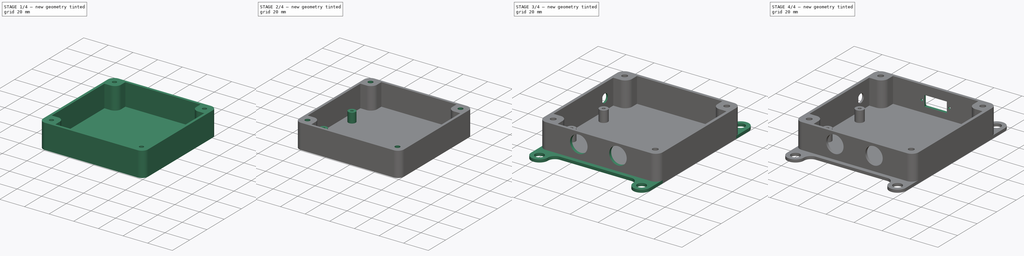
[diagram: build sequence overview — one tinted view per stage of 4, left to right]
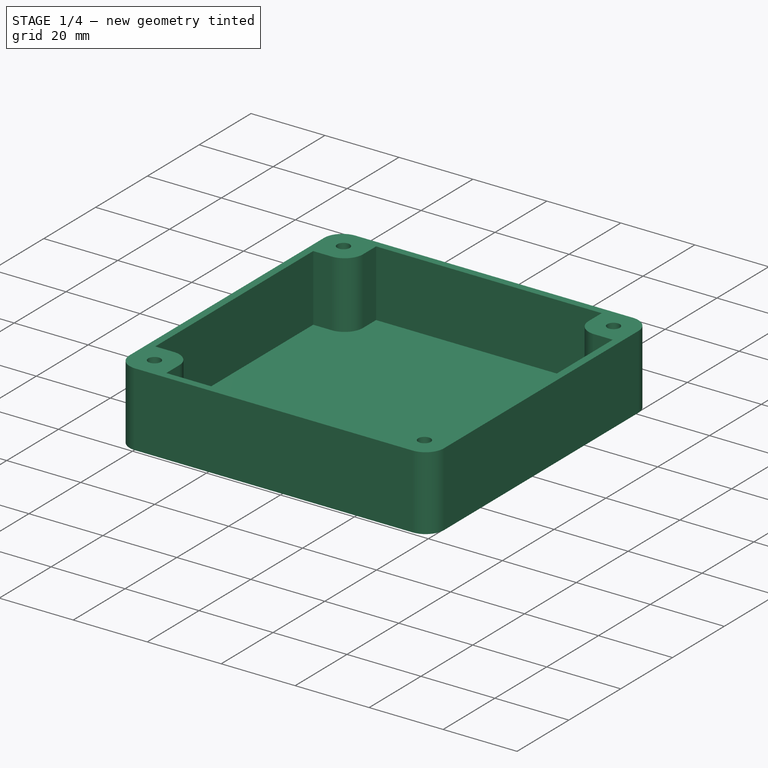
[diagram: stage 1 of 4 — iso view after this stage's code; geometry added in this stage tinted green]
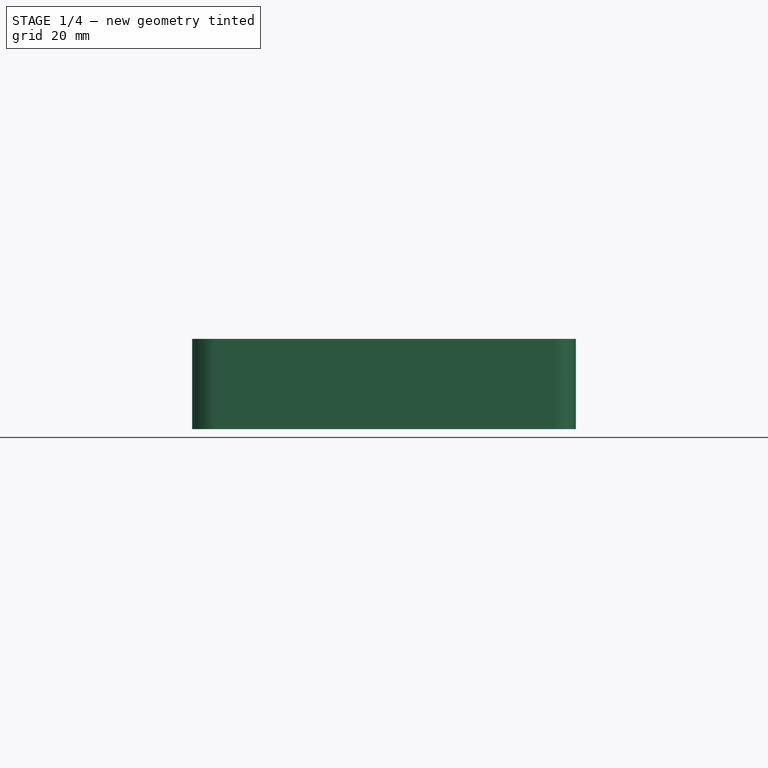
[diagram: stage 1 of 4 — front view after this stage's code; geometry added in this stage tinted green]
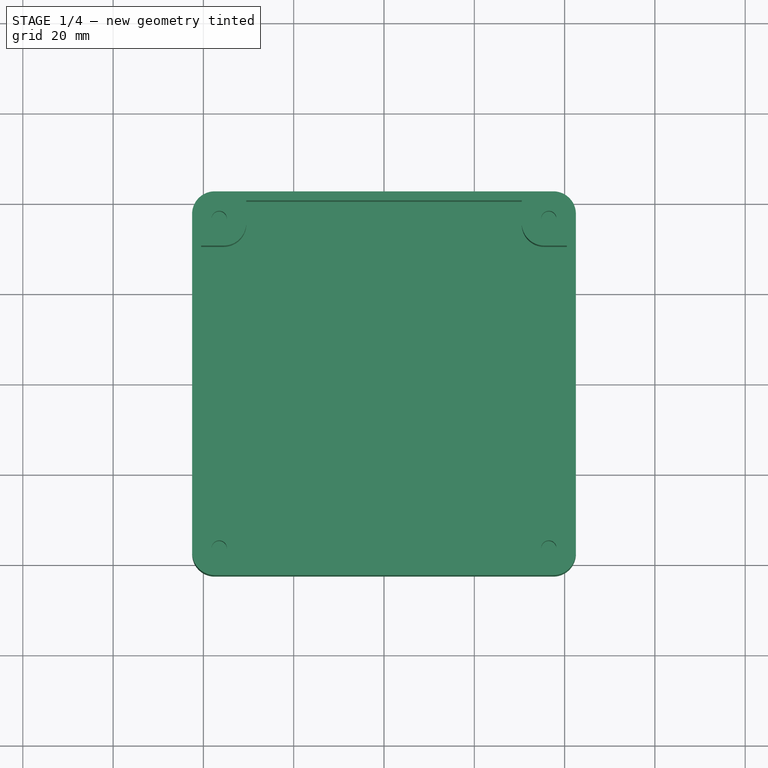
[diagram: stage 1 of 4 — top view after this stage's code; geometry added in this stage tinted green]
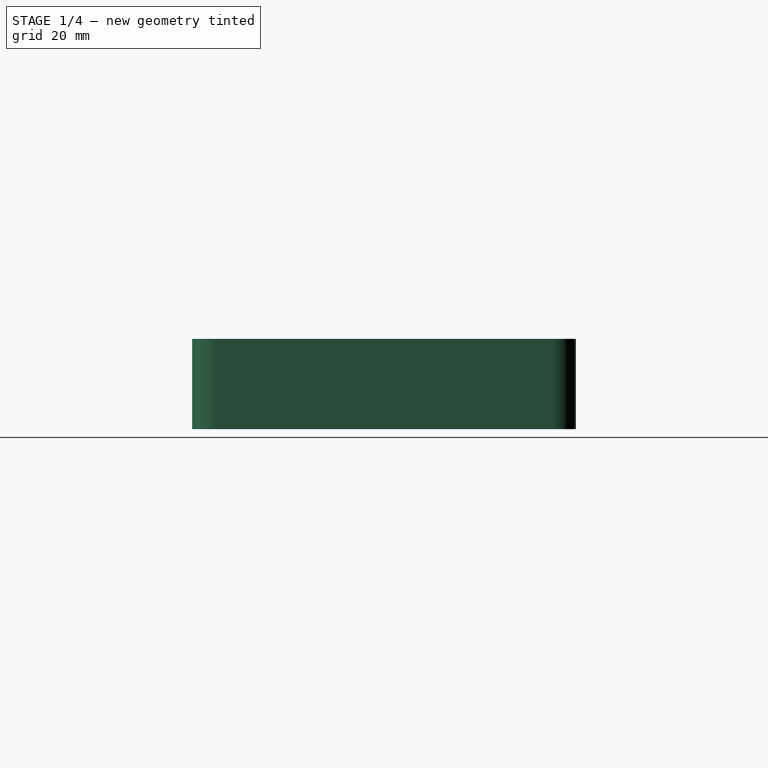
[diagram: stage 1 of 4 — right view after this stage's code; geometry added in this stage tinted green]
FCSTD DOCUMENT  (FreeCAD 0.18.4R)
Label: body
License: All rights reserved
LicenseURL: http://en.wikipedia.org/wiki/All_rights_reserved
objects: Sketcher::SketchObject×15, PartDesign::Pocket×10, PartDesign::Pad×3, PartDesign::Body×1
note: 42 computed .brp shape members not serialized (recipe doc carries the construction recipe); baked Part::Feature solids carry a one-line shape summary decoded from their .brp

FEATURE [Sketcher::SketchObject] Sketch
  MapMode = 5
  Support = -> [XY_Plane]
  sketch-geometry (8):
    g0: LineSegment StartX=-37.5 StartY=42.5 StartZ=0 EndX=37.5 EndY=42.5 EndZ=0
    g1: LineSegment StartX=42.5 StartY=37.5 StartZ=0 EndX=42.5 EndY=-37.5 EndZ=0
    g2: LineSegment StartX=37.5 StartY=-42.5 StartZ=0 EndX=-37.5 EndY=-42.5 EndZ=0
    g3: LineSegment StartX=-42.5 StartY=-37.5 StartZ=0 EndX=-42.5 EndY=37.5 EndZ=0
    g4: ArcOfCircle CenterX=-37.5 CenterY=37.5 CenterZ=0 NormalX=0 NormalY=0 NormalZ=1 AngleXU=0 Radius=5 StartAngle=1.5708 EndAngle=3.14159
    g5: ArcOfCircle CenterX=37.5 CenterY=37.5 CenterZ=0 NormalX=0 NormalY=0 NormalZ=1 AngleXU=0 Radius=5 StartAngle=1e-16 EndAngle=1.5708
    g6: ArcOfCircle CenterX=37.5 CenterY=-37.5 CenterZ=0 NormalX=0 NormalY=0 NormalZ=1 AngleXU=0 Radius=5 StartAngle=4.71239 EndAngle=6.28319
    g7: ArcOfCircle CenterX=-37.5 CenterY=-37.5 CenterZ=0 NormalX=0 NormalY=0 NormalZ=1 AngleXU=0 Radius=5 StartAngle=3.14159 EndAngle=4.71239
  constraints (19):
    c: Horizontal(g0)
    c: Horizontal(g2)
    c: Vertical(g1)
    c: Vertical(g3)
    c: Tangent(g3,g4) = 1.5708
    c: Tangent(g0,g4) = 1.5708
    c: Tangent(g0,g5) = 1.5708
    c: Tangent(g1,g5) = 1.5708
    c: Tangent(g1,g6) = 1.5708
    c: Tangent(g2,g6) = 1.5708
    c: Tangent(g2,g7) = 1.5708
    c: Tangent(g3,g7) = 1.5708
    c: Equal(g4,g5)
    c: Equal(g5,g6)
    c: Equal(g6,g7)
    c: Symmetric(g5,g7,g-1)
    c: DistanceY(g2,g0) = 85
    c: Equal(g0,g1)
    c: Radius(g4) = 5
FEATURE [PartDesign::Pad] Pad
  Length = 20
  Length2 = 100
  Profile = -> Sketch
  Type = 0
FEATURE [Sketcher::SketchObject] Sketch001
  MapMode = 5
  Placement = pos=(0,0,20) rot=(0,0,1;0rad)
  Support = -> [Pad]
FEATURE [Sketcher::SketchObject] Sketch002
  ExternalGeometry = -> [Pad]
  MapMode = 5
  Placement = pos=(0,0,20) rot=(0,0,1;0rad)
  Support = -> [Pad]
  sketch-geometry (16):
    g0: LineSegment StartX=-40.5 StartY=30.5 StartZ=0 EndX=-40.5 EndY=-30.5 EndZ=0
    g1: LineSegment StartX=-40.5 StartY=-30.5 StartZ=0 EndX=-35.5 EndY=-30.5 EndZ=0
    g2: LineSegment StartX=-30.5 StartY=-35.5 StartZ=0 EndX=-30.5 EndY=-40.5 EndZ=0
    g3: LineSegment StartX=-30.5 StartY=-40.5 StartZ=0 EndX=30.5 EndY=-40.5 EndZ=0
    g4: LineSegment StartX=30.5 StartY=-40.5 StartZ=0 EndX=30.5 EndY=-35.5 EndZ=0
    g5: LineSegment StartX=35.5 StartY=-30.5 StartZ=0 EndX=40.5 EndY=-30.5 EndZ=0
    g6: LineSegment StartX=40.5 StartY=-30.5 StartZ=0 EndX=40.5 EndY=30.5 EndZ=0
    g7: LineSegment StartX=40.5 StartY=30.5 StartZ=0 EndX=35.5 EndY=30.5 EndZ=0
    g8: LineSegment StartX=30.5 StartY=35.5 StartZ=0 EndX=30.5 EndY=40.5 EndZ=0
    g9: LineSegment StartX=30.5 StartY=40.5 StartZ=0 EndX=-30.5 EndY=40.5 EndZ=0
    g10: LineSegment StartX=-30.5 StartY=40.5 StartZ=0 EndX=-30.5 EndY=35.5 EndZ=0
    g11: LineSegment StartX=-35.5 StartY=30.5 StartZ=0 EndX=-40.5 EndY=30.5 EndZ=0
    g12: ArcOfCircle CenterX=-35.5 CenterY=35.5 CenterZ=0 NormalX=0 NormalY=0 NormalZ=1 AngleXU=0 Radius=5 StartAngle=4.71239 EndAngle=6.28319
    g13: ArcOfCircle CenterX=35.5 CenterY=35.5 CenterZ=0 NormalX=0 NormalY=0 NormalZ=1 AngleXU=0 Radius=5 StartAngle=3.14159 EndAngle=4.71239
    g14: ArcOfCircle CenterX=35.5 CenterY=-35.5 CenterZ=0 NormalX=0 NormalY=0 NormalZ=1 AngleXU=0 Radius=5 StartAngle=1.5708 EndAngle=3.14159
    g15: ArcOfCircle CenterX=-35.5 CenterY=-35.5 CenterZ=0 NormalX=0 NormalY=0 NormalZ=1 AngleXU=0 Radius=5 StartAngle=0 EndAngle=1.5708
  constraints (43):
    c: Vertical(g0)
    c: Coincident(g0,g1)
    c: Coincident(g2,g3)
    c: Horizontal(g3)
    c: Coincident(g3,g4)
    c: Coincident(g5,g6)
    c: Vertical(g6)
    c: Coincident(g6,g7)
    c: Horizontal(g7)
    c: Vertical(g8)
    c: Coincident(g8,g9)
    c: Horizontal(g9)
    c: Coincident(g9,g10)
    c: Coincident(g11,g0)
    c: Horizontal(g11)
    c: Tangent(g11,g12) = 1.5708
    c: Tangent(g10,g12) = 1.5708
    c: Tangent(g8,g13) = 1.5708
    c: Tangent(g7,g13) = 1.5708
    c: Tangent(g5,g14) = 1.5708
    c: Tangent(g4,g14) = 1.5708
    c: Tangent(g2,g15) = 1.5708
    c: Tangent(g1,g15) = 1.5708
    c: Vertical(g10)
    c: Horizontal(g5)
    c: Vertical(g4)
    c: Horizontal(g1)
    c: Vertical(g2)
    c: Equal(g0,g6)
    c: Equal(g6,g9)
    c: Equal(g9,g3)
    c: Equal(g14,g15)
    c: Equal(g2,g1)
    c: Equal(g1,g5)
    c: Equal(g5,g4)
    c: Equal(g4,g7)
    c: Equal(g7,g8)
    c: Equal(g8,g10)
    c: Equal(g10,g11)
    c: Symmetric(g13,g15,g-1)
    c: DistanceY(g9,g-3) = 2
    c: Radius(g12) = 5
    c: DistanceX(g11,g11) = 5
FEATURE [PartDesign::Pocket] Pocket
  BaseFeature = -> Pad
  Length = 18
  Length2 = 100
  Profile = -> Sketch002
  Type = 0
FEATURE [Sketcher::SketchObject] Sketch003
  ExternalGeometry = -> [Pocket]
  MapMode = 5
  Placement = pos=(0,0,20) rot=(0,0,1;0rad)
  Support = -> [Pocket]
  sketch-geometry (4):
    g0: Circle CenterX=-36.5 CenterY=36.5 CenterZ=0 NormalX=0 NormalY=0 NormalZ=1 AngleXU=0 Radius=1.6891
    g1: Circle CenterX=36.5 CenterY=36.5 CenterZ=0 NormalX=0 NormalY=0 NormalZ=1 AngleXU=0 Radius=1.6891
    g2: Circle CenterX=36.5 CenterY=-36.5 CenterZ=0 NormalX=0 NormalY=0 NormalZ=1 AngleXU=0 Radius=1.6891
    g3: Circle CenterX=-36.5 CenterY=-36.5 CenterZ=0 NormalX=0 NormalY=0 NormalZ=1 AngleXU=0 Radius=1.6891
  constraints (10):
    c: Vertical(g1,g2)
    c: Vertical(g3,g0)
    c: Horizontal(g0,g1)
    c: Horizontal(g2,g3)
    c: Equal(g3,g0)
    c: Equal(g0,g1)
    c: Equal(g1,g2)
    c: Symmetric(g1,g3,g-1)
    c: Symmetric(g-4,g-3,g3)
    c: Radius(g3) = 1.6891
FEATURE [PartDesign::Pocket] Pocket001
  BaseFeature = -> Pocket
  Length = 10
  Length2 = 100
  Profile = -> Sketch003
  Type = 0
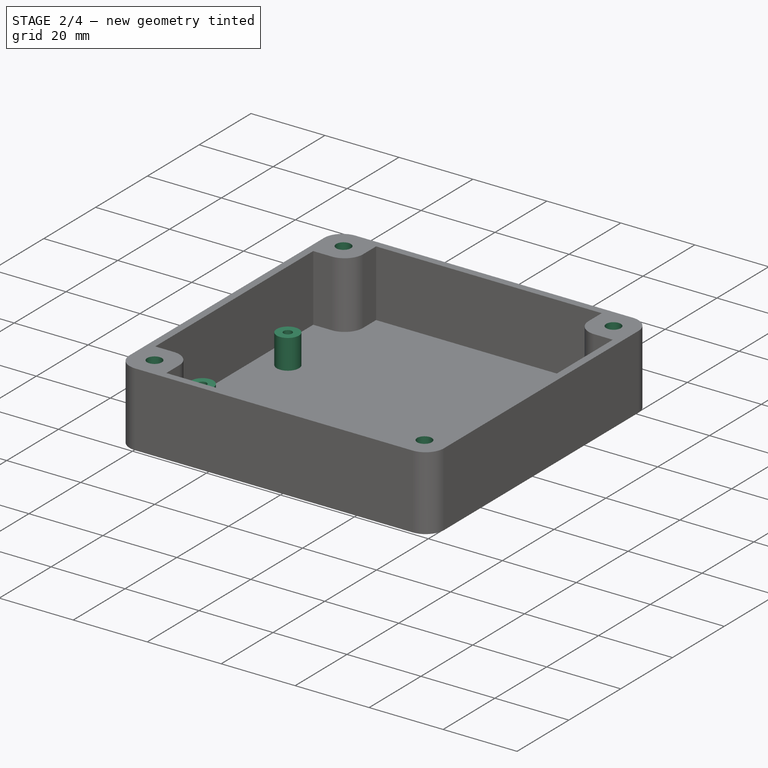
[diagram: stage 2 of 4 — iso view after this stage's code; geometry added in this stage tinted green]
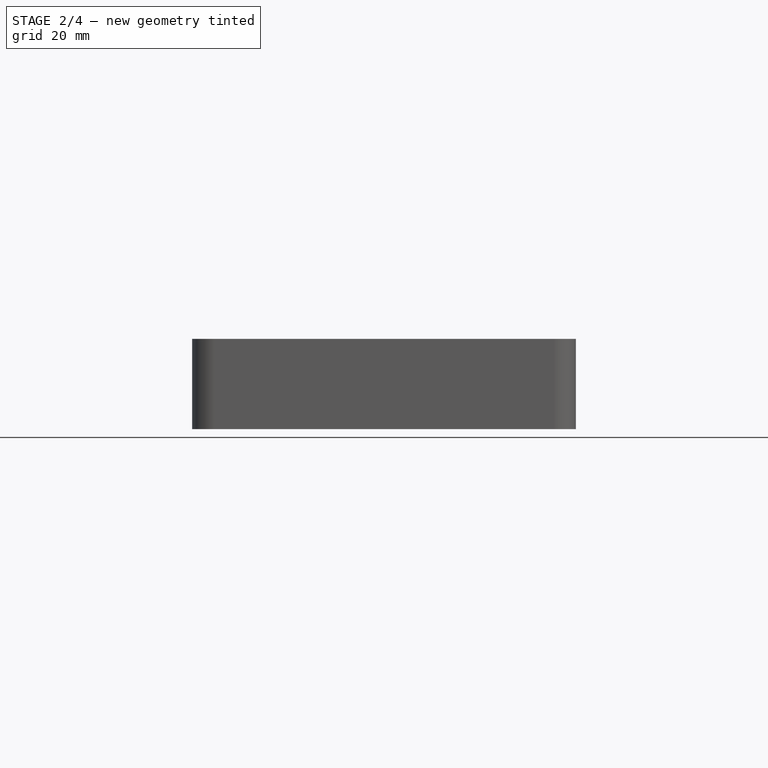
[diagram: stage 2 of 4 — front view after this stage's code; geometry added in this stage tinted green]
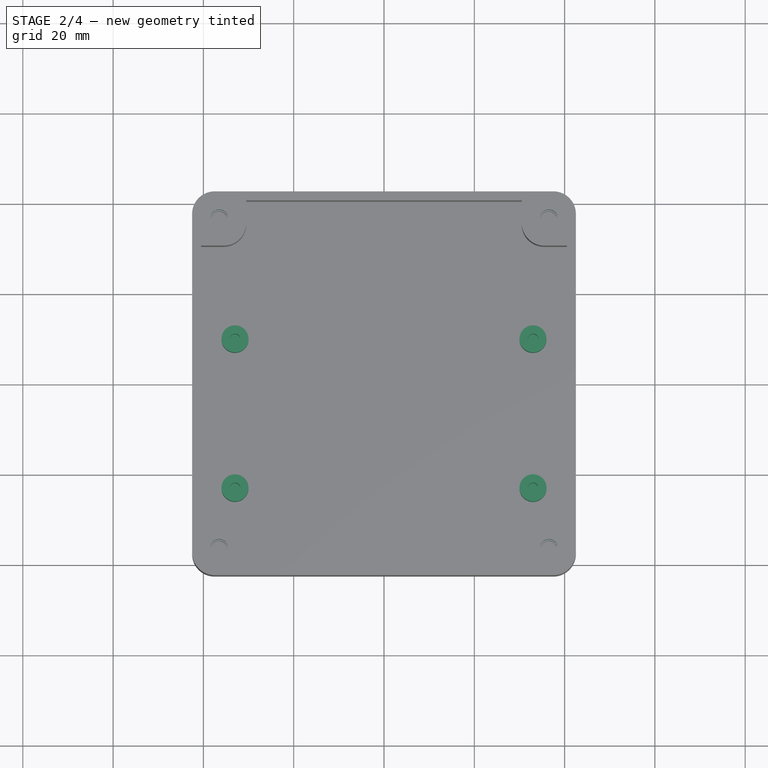
[diagram: stage 2 of 4 — top view after this stage's code; geometry added in this stage tinted green]
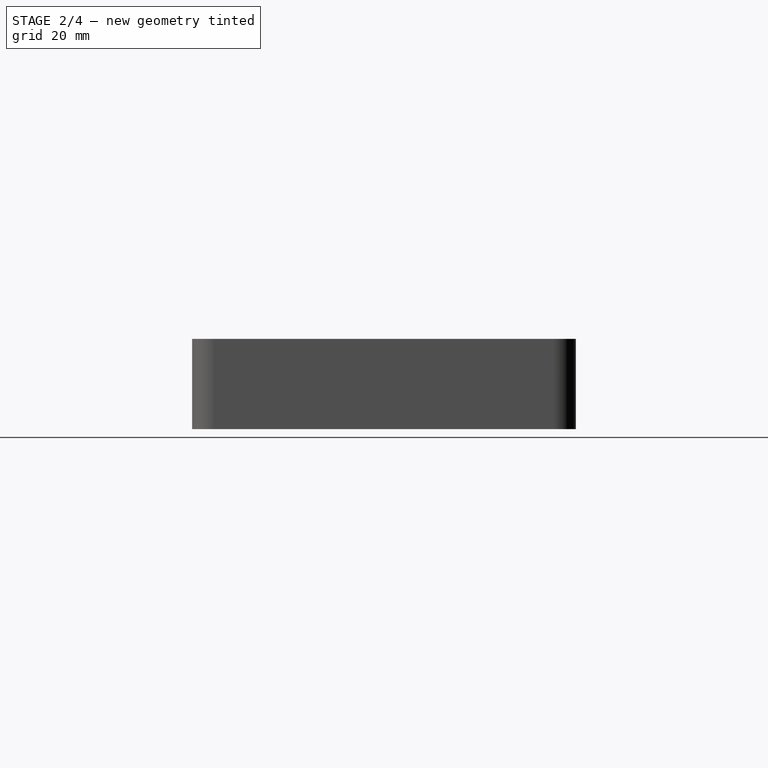
[diagram: stage 2 of 4 — right view after this stage's code; geometry added in this stage tinted green]
FEATURE [Sketcher::SketchObject] Sketch004
  MapMode = 5
  Placement = pos=(0,0,2) rot=(0,0,1;0rad)
  Support = -> [Pocket001]
FEATURE [Sketcher::SketchObject] Sketch005
  ExternalGeometry = -> [Pocket001]
  MapMode = 5
  Placement = pos=(0,0,20) rot=(0,0,1;0rad)
  Support = -> [Pocket001]
  sketch-geometry (4):
    g0: Circle CenterX=-36.5 CenterY=36.5 CenterZ=0 NormalX=0 NormalY=0 NormalZ=1 AngleXU=0 Radius=1.98
    g1: Circle CenterX=-36.5 CenterY=-36.5 CenterZ=0 NormalX=0 NormalY=0 NormalZ=1 AngleXU=0 Radius=1.98
    g2: Circle CenterX=36.5 CenterY=-36.5 CenterZ=0 NormalX=0 NormalY=0 NormalZ=1 AngleXU=0 Radius=1.98
    g3: Circle CenterX=36.5 CenterY=36.5 CenterZ=0 NormalX=0 NormalY=0 NormalZ=1 AngleXU=0 Radius=1.98
  constraints (8):
    c: Coincident(g0,g-3)
    c: Coincident(g1,g-4)
    c: Coincident(g2,g-5)
    c: Coincident(g3,g-6)
    c: Equal(g3,g0)
    c: Equal(g0,g1)
    c: Equal(g1,g2)
    c: Radius(g2) = 1.98
FEATURE [PartDesign::Pocket] Pocket002
  BaseFeature = -> Pocket001
  Length = 5
  Length2 = 100
  Profile = -> Sketch005
  Type = 0
FEATURE [Sketcher::SketchObject] Sketch006
  MapMode = 5
  Placement = pos=(0,0,2) rot=(0,0,1;0rad)
  Support = -> [Pocket002]
  sketch-geometry (4):
    g0: Circle CenterX=-33 CenterY=10 CenterZ=0 NormalX=0 NormalY=0 NormalZ=1 AngleXU=0 Radius=3
    g1: Circle CenterX=33 CenterY=10 CenterZ=0 NormalX=0 NormalY=0 NormalZ=1 AngleXU=0 Radius=3
    g2: Circle CenterX=-33 CenterY=-23 CenterZ=0 NormalX=0 NormalY=0 NormalZ=1 AngleXU=0 Radius=3
    g3: Circle CenterX=33 CenterY=-23 CenterZ=0 NormalX=0 NormalY=0 NormalZ=1 AngleXU=0 Radius=3
  constraints (11):
    c: Horizontal(g3,g2)
    c: Vertical(g0,g2)
    c: Vertical(g1,g3)
    c: Equal(g3,g2)
    c: Equal(g2,g1)
    c: Equal(g1,g0)
    c: Radius(g2) = 3
    c: DistanceX(g0,g1) = 66
    c: DistanceY(g2,g0) = 33
    c: Symmetric(g1,g0,g-2)
    c: DistanceY(g-1,g1) = 10
FEATURE [PartDesign::Pad] Pad001
  BaseFeature = -> Pocket002
  Length = 8
  Length2 = 100
  Profile = -> Sketch006
  Type = 0
FEATURE [Sketcher::SketchObject] Sketch007
  ExternalGeometry = -> [Pad001]
  MapMode = 5
  Placement = pos=(0,0,10) rot=(0,0,1;0rad)
  Support = -> [Pad001]
  sketch-geometry (4):
    g0: Circle CenterX=33 CenterY=10 CenterZ=0 NormalX=0 NormalY=0 NormalZ=1 AngleXU=0 Radius=1.15
    g1: Circle CenterX=33 CenterY=-23 CenterZ=0 NormalX=0 NormalY=0 NormalZ=1 AngleXU=0 Radius=1.15
    g2: Circle CenterX=-33 CenterY=10 CenterZ=0 NormalX=0 NormalY=0 NormalZ=1 AngleXU=0 Radius=1.15
    g3: Circle CenterX=-33 CenterY=-23 CenterZ=0 NormalX=0 NormalY=0 NormalZ=1 AngleXU=0 Radius=1.15
  constraints (8):
    c: Coincident(g0,g-3)
    c: Coincident(g1,g-6)
    c: Coincident(g2,g-4)
    c: Coincident(g3,g-5)
    c: Equal(g3,g2)
    c: Equal(g2,g0)
    c: Equal(g0,g1)
    c: Radius(g1) = 1.15
FEATURE [PartDesign::Pocket] Pocket003
  BaseFeature = -> Pad001
  Length = 7
  Length2 = 100
  Profile = -> Sketch007
  Type = 0
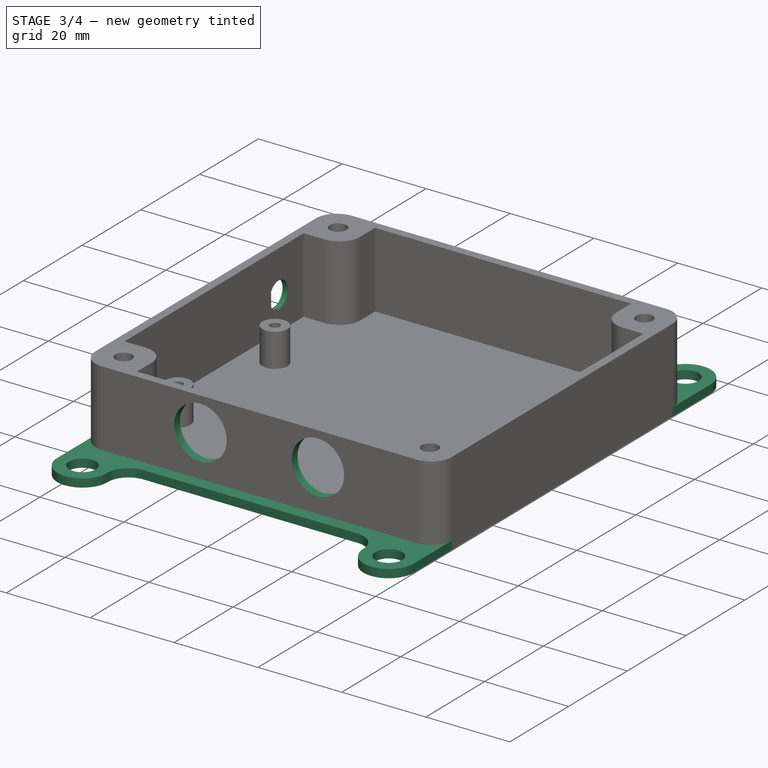
[diagram: stage 3 of 4 — iso view after this stage's code; geometry added in this stage tinted green]
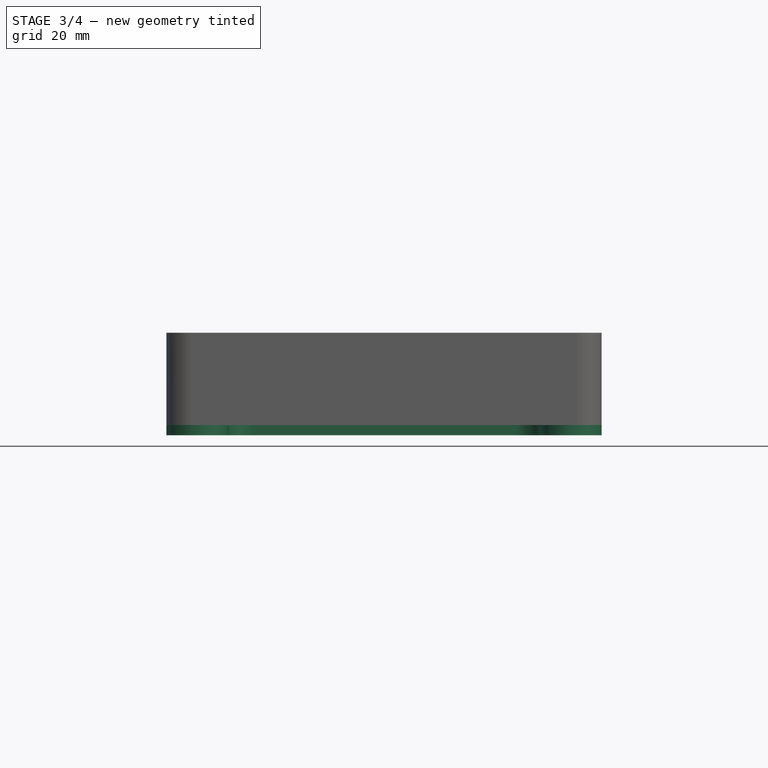
[diagram: stage 3 of 4 — front view after this stage's code; geometry added in this stage tinted green]
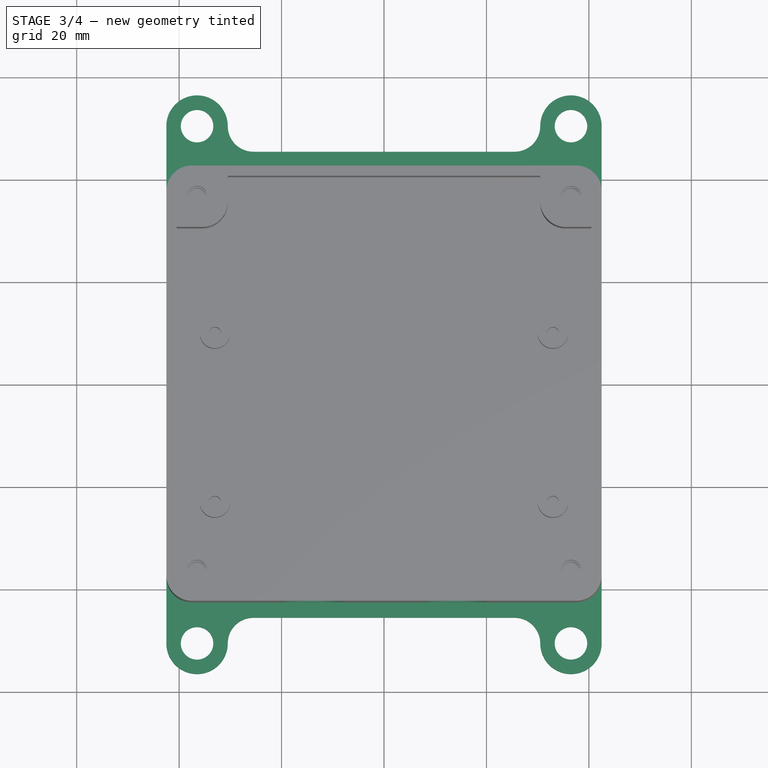
[diagram: stage 3 of 4 — top view after this stage's code; geometry added in this stage tinted green]
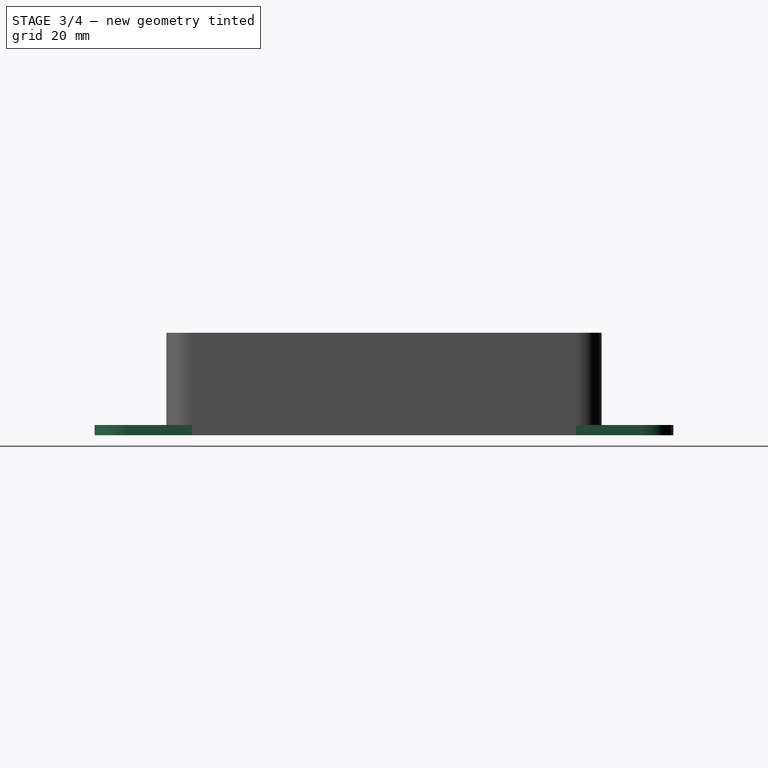
[diagram: stage 3 of 4 — right view after this stage's code; geometry added in this stage tinted green]
FEATURE [Sketcher::SketchObject] Sketch008
  ExternalGeometry = -> [Pocket003]
  MapMode = 5
  Placement = pos=(0,-42.5,0) rot=(1,0,0;1.5708rad)
  Support = -> [Pocket003]
  sketch-geometry (2):
    g0: Circle CenterX=-14 CenterY=12 CenterZ=0 NormalX=0 NormalY=0 NormalZ=1 AngleXU=0 Radius=6.25
    g1: Circle CenterX=14 CenterY=12 CenterZ=0 NormalX=0 NormalY=0 NormalZ=1 AngleXU=0 Radius=6.25
  constraints (5):
    c: Equal(g0,g1)
    c: Symmetric(g1,g0,g-2)
    c: DistanceY(g-1,g0) = 12
    c: Radius(g0) = 6.25
    c: DistanceX(g-1,g1) = 14
FEATURE [PartDesign::Pocket] Pocket004
  BaseFeature = -> Pocket003
  Length = 5
  Length2 = 100
  Profile = -> Sketch008
  Type = 0
FEATURE [Sketcher::SketchObject] Sketch012
  MapMode = 5
  Placement = pos=(-42.5,0,0) rot=(0.57735,-0.57735,-0.57735;2.0944rad)
  sketch-geometry (2):
    g0: ArcOfCircle CenterX=-22 CenterY=10 CenterZ=0 NormalX=0 NormalY=0 NormalZ=1 AngleXU=0 Radius=3.0734 StartAngle=0.583189 EndAngle=5.7
    g1: LineSegment StartX=-19.4346 StartY=11.6925 StartZ=0 EndX=-19.4346 EndY=8.30751 EndZ=0
  constraints (7):
    c: DistanceY(g-1,g0) = 10
    c: Vertical(g1)
    c: Coincident(g0,g1)
    c: Coincident(g0,g1)
    c: DistanceX(g0,g0) = 2.5654
    c: Radius(g0) = 3.0734
    c: DistanceX(g0,g-1) = 22
FEATURE [PartDesign::Pocket] Pocket008
  BaseFeature = -> Pocket004
  Length = 5
  Length2 = 100
  Profile = -> Sketch012
  Type = 0
FEATURE [Sketcher::SketchObject] Sketch013
  ExternalGeometry = -> [Pocket008]
  MapMode = 5
  Placement = pos=(-42.5,0,0) rot=(0.57735,-0.57735,-0.57735;2.0944rad)
  Support = -> [Pocket008]
  sketch-geometry (1):
    g0: Circle CenterX=-22 CenterY=10 CenterZ=0 NormalX=0 NormalY=0 NormalZ=1 AngleXU=0 Radius=4.40055
  constraints (2):
    c: Coincident(g0,g-3)
    c: Radius(g0) = 4.40055
FEATURE [PartDesign::Pocket] Pocket009
  BaseFeature = -> Pocket008
  Length = 0.75
  Length2 = 100
  Profile = -> Sketch013
  Type = 0
FEATURE [Sketcher::SketchObject] Sketch014
  ExternalGeometry = -> [Pocket009]
  MapMode = 5
  Placement = pos=(0,0,0) rot=(1,0,0;3.14159rad)
  Support = -> [Pocket009]
  sketch-geometry (16):
    g0: ArcOfCircle CenterX=-36.5 CenterY=50.5 CenterZ=0 NormalX=0 NormalY=0 NormalZ=1 AngleXU=0 Radius=6 StartAngle=0 EndAngle=3.14159
    g1: ArcOfCircle CenterX=36.5 CenterY=50.5 CenterZ=0 NormalX=0 NormalY=0 NormalZ=1 AngleXU=0 Radius=6 StartAngle=2.48892e-08 EndAngle=3.14159
    g2: ArcOfCircle CenterX=-36.5 CenterY=-50.5 CenterZ=0 NormalX=0 NormalY=0 NormalZ=1 AngleXU=0 Radius=6 StartAngle=3.14159 EndAngle=6.28319
    g3: ArcOfCircle CenterX=36.5 CenterY=-50.5 CenterZ=0 NormalX=0 NormalY=0 NormalZ=1 AngleXU=0 Radius=6 StartAngle=3.14159 EndAngle=6.28319
    g4: LineSegment StartX=-25.5 StartY=45.5 StartZ=0 EndX=25.5 EndY=45.5 EndZ=0
    g5: LineSegment StartX=-42.5 StartY=50.5 StartZ=0 EndX=-42.5 EndY=-50.5 EndZ=0
    g6: LineSegment StartX=-25.5 StartY=-45.5 StartZ=0 EndX=25.5 EndY=-45.5 EndZ=0
    g7: LineSegment StartX=42.5 StartY=-50.5 StartZ=0 EndX=42.5 EndY=50.5 EndZ=0
    g8: ArcOfCircle CenterX=-25.5 CenterY=50.5 CenterZ=0 NormalX=0 NormalY=0 NormalZ=1 AngleXU=0 Radius=5 StartAngle=3.14159 EndAngle=4.71239
    g9: ArcOfCircle CenterX=25.5 CenterY=50.5 CenterZ=0 NormalX=0 NormalY=0 NormalZ=1 AngleXU=0 Radius=5 StartAngle=4.71239 EndAngle=6.28319
    g10: ArcOfCircle CenterX=-25.5 CenterY=-50.5 CenterZ=0 NormalX=0 NormalY=0 NormalZ=1 AngleXU=0 Radius=5 StartAngle=1.5708 EndAngle=3.14159
    g11: ArcOfCircle CenterX=25.5 CenterY=-50.5 CenterZ=0 NormalX=0 NormalY=0 NormalZ=1 AngleXU=0 Radius=5 StartAngle=4e-16 EndAngle=1.5708
    g12: Circle CenterX=-36.5 CenterY=-50.5 CenterZ=0 NormalX=0 NormalY=0 NormalZ=1 AngleXU=0 Radius=3.175
    g13: Circle CenterX=36.5 CenterY=-50.5 CenterZ=0 NormalX=0 NormalY=0 NormalZ=1 AngleXU=0 Radius=3.175
    g14: Circle CenterX=36.5 CenterY=50.5 CenterZ=0 NormalX=0 NormalY=0 NormalZ=1 AngleXU=0 Radius=3.175
    g15: Circle CenterX=-36.5 CenterY=50.5 CenterZ=0 NormalX=0 NormalY=0 NormalZ=1 AngleXU=0 Radius=3.175
  constraints (43):
    c: Horizontal(g4)
    c: Coincident(g5,g0)
    c: Coincident(g5,g2)
    c: Horizontal(g6)
    c: Coincident(g7,g3)
    c: Coincident(g7,g1)
    c: Tangent(g7,g1)
    c: Equal(g1,g3)
    c: Equal(g3,g2)
    c: Equal(g2,g0)
    c: Vertical(g7)
    c: Horizontal(g0,g0)
    c: Horizontal(g1,g1)
    c: Horizontal(g0,g0)
    c: Vertical(g5)
    c: Vertical(g0,g-3)
    c: Vertical(g1,g-4)
    c: Horizontal(g3,g3)
    c: Horizontal(g2,g2)
    c: Horizontal(g2,g2)
    c: Horizontal(g3,g3)
    c: Tangent(g0,g8) = 1.5708
    c: Tangent(g4,g8) = -1.5708
    c: Tangent(g4,g9) = -1.5708
    c: Tangent(g1,g9) = 1.5708
    c: Tangent(g2,g10) = 1.5708
    c: Tangent(g6,g10) = 1.5708
    c: Tangent(g6,g11) = 1.5708
    c: Tangent(g3,g11) = 1.5708
    c: Equal(g8,g10)
    c: Equal(g10,g11)
    c: Radius(g2) = 6
    c: Symmetric(g6,g4,g-1)
    c: DistanceY(g6,g-5) = 3
    c: Coincident(g12,g2)
    c: Coincident(g13,g3)
    c: Coincident(g14,g1)
    c: Coincident(g15,g0)
    c: Equal(g15,g14)
    c: Equal(g14,g13)
    c: Equal(g13,g12)
    c: Radius(g13) = 3.175
    c: Radius(g8) = 5
FEATURE [PartDesign::Pad] Pad002
  BaseFeature = -> Pocket009
  Length = 2
  Length2 = 100
  Profile = -> Sketch014
  Reversed = true
  Type = 0
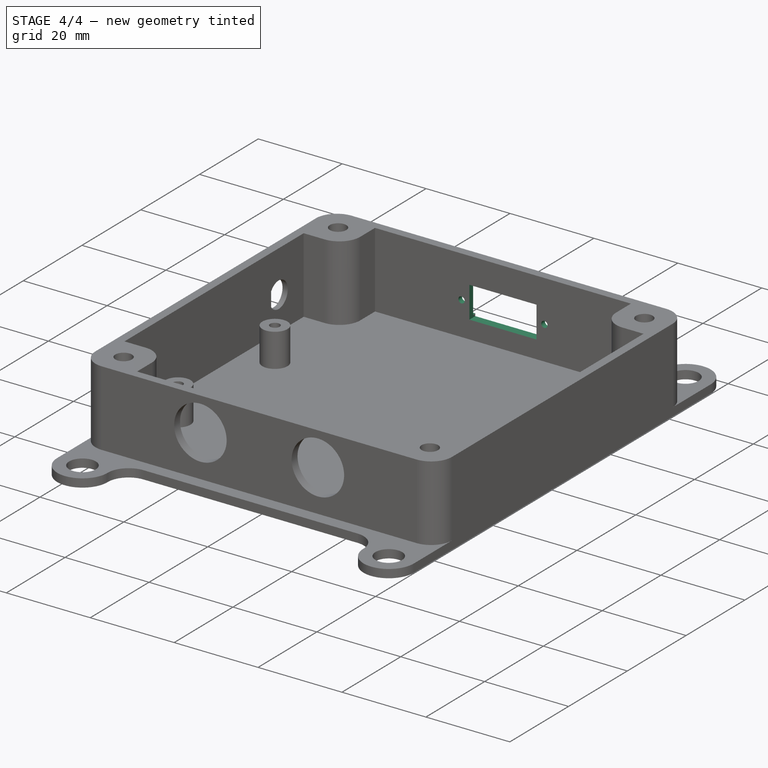
[diagram: stage 4 of 4 — iso view after this stage's code; geometry added in this stage tinted green]
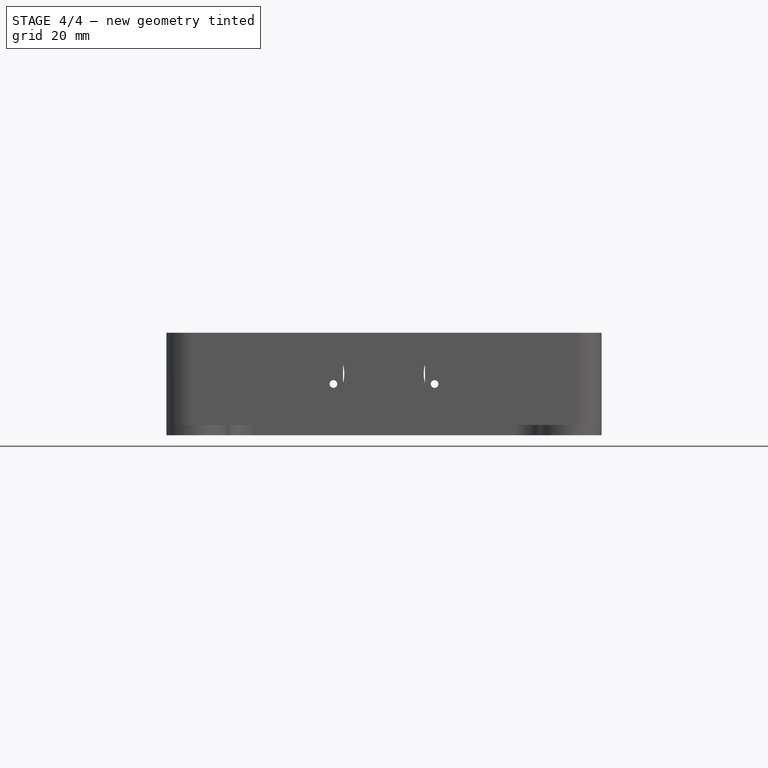
[diagram: stage 4 of 4 — front view after this stage's code; geometry added in this stage tinted green]
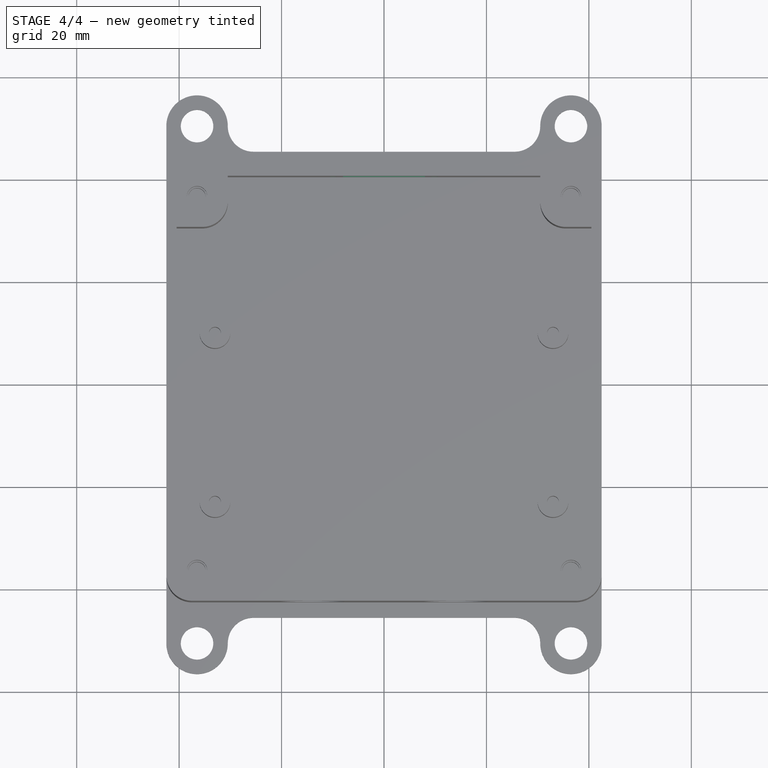
[diagram: stage 4 of 4 — top view after this stage's code; geometry added in this stage tinted green]
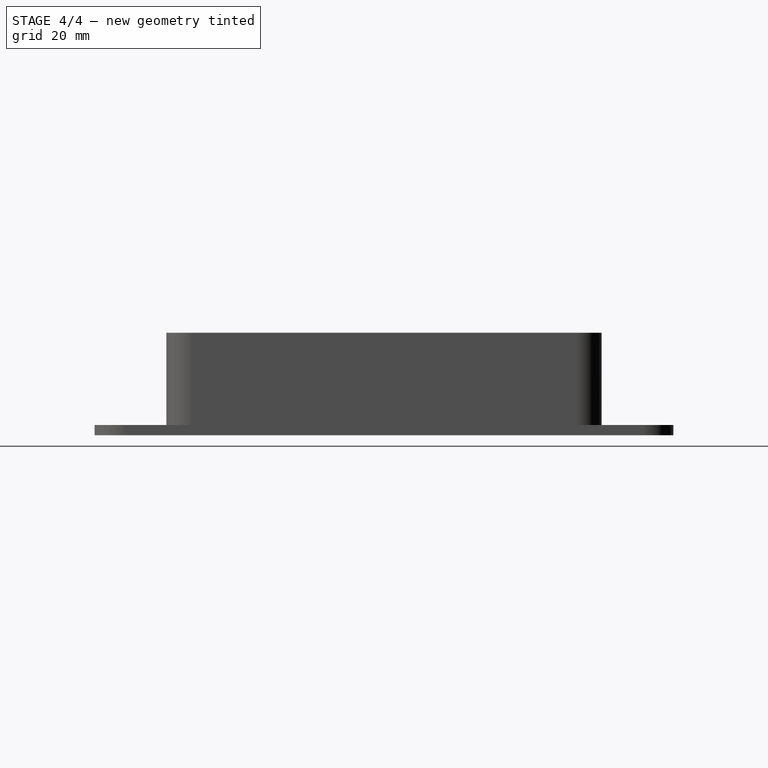
[diagram: stage 4 of 4 — right view after this stage's code; geometry added in this stage tinted green]
FEATURE [Sketcher::SketchObject] Sketch015
  MapMode = 5
  Placement = pos=(0,42.5,0) rot=(0,0.707107,0.707107;3.14159rad)
  sketch-geometry (4):
    g0: LineSegment StartX=-11.75 StartY=13.15 StartZ=0 EndX=11.75 EndY=13.15 EndZ=0
    g1: LineSegment StartX=11.75 StartY=13.15 StartZ=0 EndX=11.75 EndY=6.85 EndZ=0
    g2: LineSegment StartX=11.75 StartY=6.85 StartZ=0 EndX=-11.75 EndY=6.85 EndZ=0
    g3: LineSegment StartX=-11.75 StartY=6.85 StartZ=0 EndX=-11.75 EndY=13.15 EndZ=0
  constraints (12):
    c: Coincident(g0,g1)
    c: Coincident(g1,g2)
    c: Coincident(g2,g3)
    c: Coincident(g3,g0)
    c: Horizontal(g0)
    c: Horizontal(g2)
    c: Vertical(g1)
    c: Vertical(g3)
    c: DistanceX(g2,g2) = 23.5
    c: DistanceY(g1,g1) = 6.3
    c: DistanceX(g2,g-1) = 11.75
    c: DistanceY(g-1,g1) = 6.85
FEATURE [PartDesign::Pocket] Pocket010
  BaseFeature = -> Pad002
  Length = 0.75
  Length2 = 100
  Profile = -> Sketch015
  Type = 0
FEATURE [Sketcher::SketchObject] Sketch016
  ExternalGeometry = -> [Pocket010]
  MapMode = 5
  Placement = pos=(0,42.5,0) rot=(0,0.707107,0.707107;3.14159rad)
  Support = -> [Pocket010]
  sketch-geometry (4):
    g0: LineSegment StartX=-8 StartY=13.75 StartZ=0 EndX=8 EndY=13.75 EndZ=0
    g1: LineSegment StartX=8 StartY=13.75 StartZ=0 EndX=8 EndY=6.25 EndZ=0
    g2: LineSegment StartX=8 StartY=6.25 StartZ=0 EndX=-8 EndY=6.25 EndZ=0
    g3: LineSegment StartX=-8 StartY=6.25 StartZ=0 EndX=-8 EndY=13.75 EndZ=0
  constraints (12):
    c: Coincident(g0,g1)
    c: Coincident(g1,g2)
    c: Coincident(g2,g3)
    c: Coincident(g3,g0)
    c: Horizontal(g0)
    c: Horizontal(g2)
    c: Vertical(g1)
    c: Vertical(g3)
    c: DistanceX(g2,g2) = 16
    c: DistanceY(g1,g1) = 7.5
    c: DistanceY(g-3,g2) = -0.6
    c: DistanceX(g-3,g0) = 3.75
FEATURE [PartDesign::Pocket] Pocket011
  BaseFeature = -> Pocket010
  Length = 5
  Length2 = 100
  Profile = -> Sketch016
  Type = 0
FEATURE [Sketcher::SketchObject] Sketch017
  ExternalGeometry = -> [Pocket011]
  MapMode = 5
  Placement = pos=(0,41.75,0) rot=(0,0.707107,0.707107;3.14159rad)
  Support = -> [Pocket011]
  sketch-geometry (2):
    g0: Circle CenterX=-9.875 CenterY=10 CenterZ=0 NormalX=0 NormalY=0 NormalZ=1 AngleXU=0 Radius=0.75
    g1: Circle CenterX=9.875 CenterY=10 CenterZ=0 NormalX=0 NormalY=0 NormalZ=1 AngleXU=0 Radius=0.75
  constraints (4):
    c: Equal(g0,g1)
    c: Radius(g1) = 0.75
    c: Symmetric(g-4,g-3,g0)
    c: Symmetric(g-6,g-5,g1)
FEATURE [PartDesign::Pocket] Pocket012
  BaseFeature = -> Pocket011
  Length = 5
  Length2 = 100
  Profile = -> Sketch017
  Type = 0
FEATURE [PartDesign::Body] Body
  Group = -> [Sketch,Pad,Sketch001,Sketch002,Pocket,Sketch003,Pocket001,Sketch004,Sketch005,Pocket002,Sketch006,Pad001,Sketch007,Pocket003,Sketch008,Pocket004,Sketch012,Pocket008,Sketch013,Pocket009,Sketch014,Pad002,Sketch015,Pocket010,Sketch016,Pocket011,Sketch017,Pocket012]
  Origin = -> Origin
  Tip = -> Pocket012
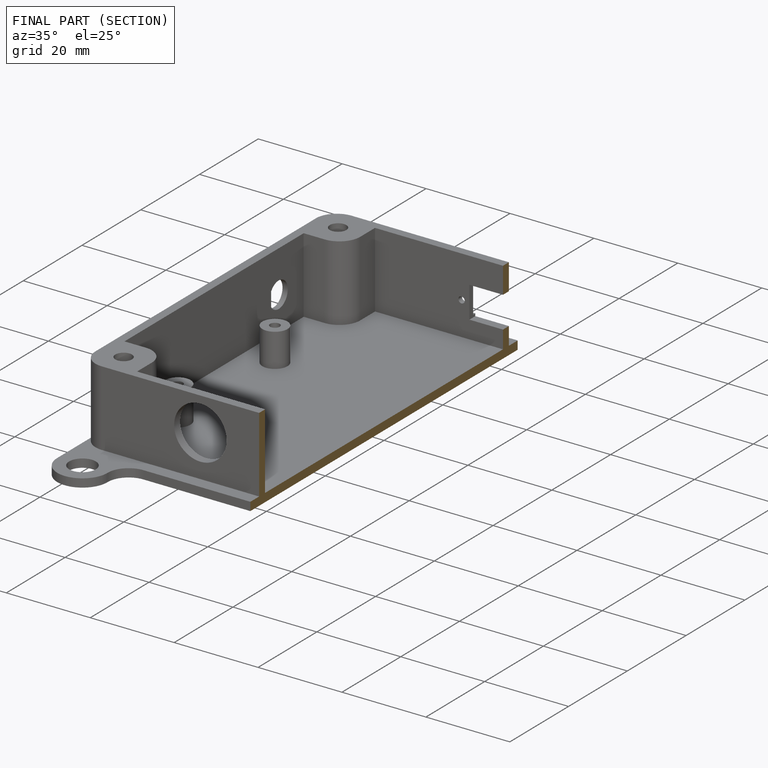
[diagram: finished part — half-section view (interior)]
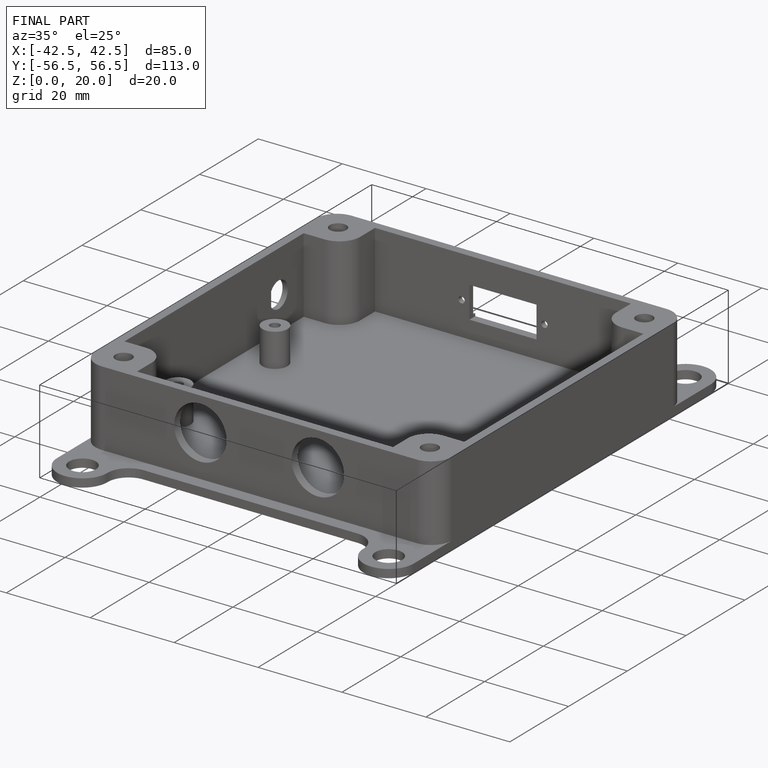
[diagram: finished part — iso view with bounding-box wireframe]
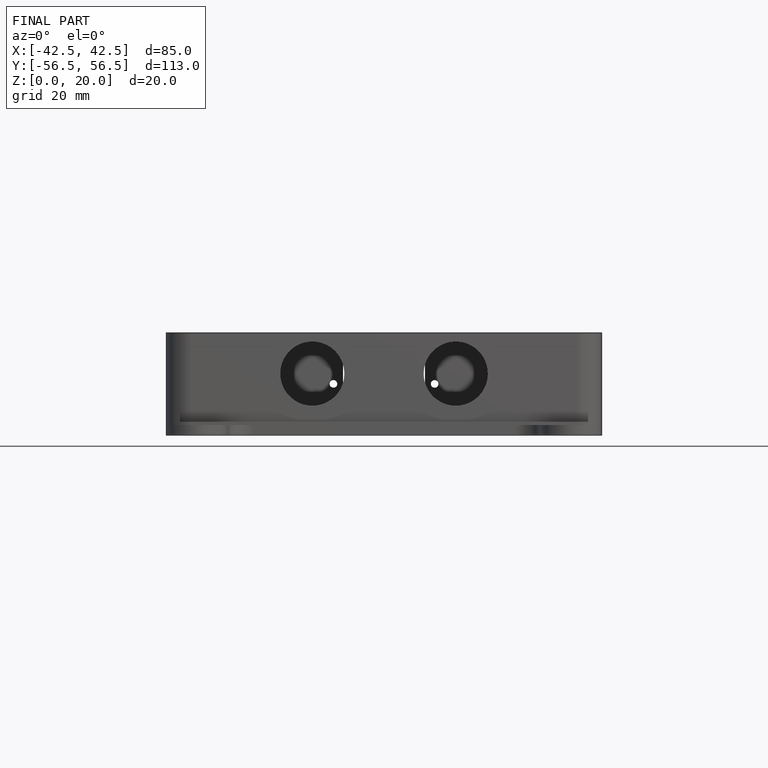
[diagram: finished part — front view with bounding-box wireframe]
